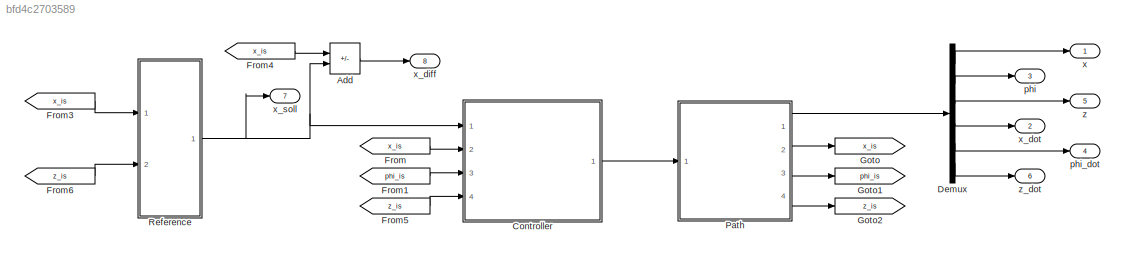
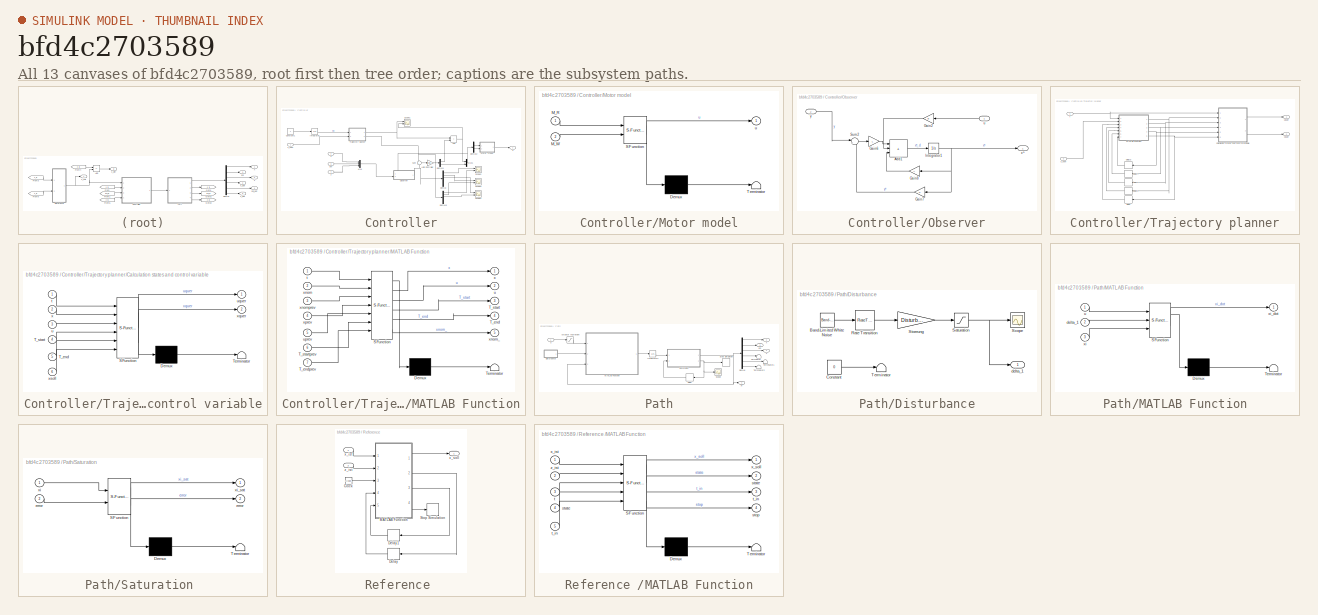
[diagram: thumbnail index - all 13 canvases of the model, root first then tree order]
MODEL slx_bfd4c2703589
KIND model
CONFIG AbsTol = auto
CONFIG EnableMultiTasking = on
CONFIG FixedStep = tStep
CONFIG MaxStep = auto
CONFIG MinStep = auto
CONFIG RelTol = 1e-3
CONFIG SampleTimeConstraint = Unconstrained
CONFIG SolverName = ode23s
CONFIG StartTime = tSim(1)
CONFIG StopTime = tSim(end)
BLOCK [Sum] Add
  IconShape = rectangular
  Inputs = +-
  Ports = [2, 1]
BLOCK [SubSystem] Controller
  Ports = [4, 1]
  RequestExecContextInheritance = off
BLOCK [Sum] Controller/Add
  IconShape = rectangular
  Ports = [2, 1]
BLOCK [Constant] Controller/Constant1
BLOCK [Demux] Controller/Demux
  Outputs = 6
  Ports = [1, 6]
BLOCK [Demux] Controller/Demux1
  Outputs = 2
  Ports = [1, 2]
BLOCK [Demux] Controller/Demux2
  Outputs = 2
  Ports = [1, 2]
BLOCK [Demux] Controller/Demux3
  Outputs = 6
  Ports = [1, 6]
BLOCK [Integrator] Controller/Integrator
  Ports = [1, 1]
BLOCK [Gain] Controller/LQR Controller
  Gain = -ricatti_controller
  Multiplication = Matrix(K*u)
BLOCK [SubSystem] Controller/Motor model
  ErrorFcn = Stateflow.Translate.translate
  PermitHierarchicalResolution = ExplicitOnly
  Ports = [2, 1]
  RequestExecContextInheritance = off
  SFBlockType = MATLAB Function
  TreatAsAtomicUnit = on
BLOCK [Demux] Controller/Motor model/ Demux 
  Outputs = 1
  Ports = [1, 1]
BLOCK [S-Function] Controller/Motor model/ SFunction 
  EnableBusSupport = on
  FunctionName = sf_sfun
  PortCounts = [2 2]
  Ports = [2, 2]
  SFcnIsStateOwnerBlock = off
  SFunctionDeploymentMode = off
  Tag = Stateflow S-Function 4
BLOCK [Terminator] Controller/Motor model/ Terminator 
BLOCK [Inport] Controller/Motor model/M_R
BLOCK [Inport] Controller/Motor model/M_W
  Port = 2
BLOCK [Outport] Controller/Motor model/u
BLOCK [Mux] Controller/Mux
  DisplayOption = bar
  Inputs = 3
  Ports = [3, 1]
BLOCK [Mux] Controller/Mux1
  DisplayOption = bar
  Inputs = 2
  Ports = [2, 1]
BLOCK [SubSystem] Controller/Observer
  NameLocation = top
  PortSchema = {"entries":[{"content":{"sides":[{"content":{"connectorIds":[]},"type":"ConnectorPlacement.EquallySpacedRectSide","uuid":"22a8423b-4933-4d51-83bb-0edf08131761"},{"content":{"connectorIds":["In2"],"side":"RIGHT"},"type":"ConnectorPlacement.EquallySpacedRectSide","uuid":"5b9d6d1b-98ab-4219-9af7-7fee9c92a51b"},{"content":{"connectorIds":[],"side":"TOP"},"type":"ConnectorPlacement.EquallySpacedRectSid...<+534ch>
  Ports = [2, 1]
  RequestExecContextInheritance = off
BLOCK [Sum] Controller/Observer/Add1
  IconShape = rectangular
  Inputs = +++
  Ports = [3, 1]
BLOCK [Gain] Controller/Observer/Gain2
  Gain = B
  Multiplication = Matrix(K*u)
  NameLocation = top
BLOCK [Gain] Controller/Observer/Gain6
  Gain = L
  Multiplication = Matrix(K*u)
BLOCK [Gain] Controller/Observer/Gain7
  Gain = C
  Multiplication = Matrix(K*u)
  NameLocation = top
BLOCK [Gain] Controller/Observer/Gain8
  Gain = A
  Multiplication = Matrix(K*u)
  NameLocation = top
BLOCK [Integrator] Controller/Observer/Integrator1
  InitialCondition = IC
  Ports = [1, 1]
BLOCK [Sum] Controller/Observer/Sum2
  Inputs = |+-
  Ports = [2, 1]
BLOCK [Inport] Controller/Observer/u
  NameLocation = top
BLOCK [Outport] Controller/Observer/x^
BLOCK [Inport] Controller/Observer/y
  Port = 2
BLOCK [Scope] Controller/Scope1
  Floating = off
  NumInputPorts = 2
  Ports = [2]
  ScopeSpecificationString = Simulink.scopes.TimeScopeBlockCfg('CurrentConfiguration', extmgr.ConfigurationSet(extmgr.Configuration('Core','General UI',true),extmgr.Configuration('Core','Source UI',true),extmgr.Configuration('Sources','WiredSimulink',true,'DataLoggingVariableName','ScopeData2'),extmgr.Configuration('Visuals','Time Domain',true,'SerializedDisplays',{struct('MinYLimReal','-0.31783','MaxYLimReal','0.17936','YLab...<+1438ch>
BLOCK [Scope] Controller/Scope2
  Floating = off
  NumInputPorts = 2
  Ports = [2]
  ScopeSpecificationString = Simulink.scopes.TimeScopeBlockCfg('CurrentConfiguration', extmgr.ConfigurationSet(extmgr.Configuration('Core','General UI',true),extmgr.Configuration('Core','Source UI',true),extmgr.Configuration('Sources','WiredSimulink',true,'DataLoggingVariableName','ScopeData2'),extmgr.Configuration('Visuals','Time Domain',true,'SerializedDisplays',{struct('MinYLimReal','-2.75206','MaxYLimReal','0.58674','YLab...<+1421ch>
BLOCK [Scope] Controller/Scope3
  Floating = off
  NumInputPorts = 2
  Ports = [2]
  ScopeSpecificationString = Simulink.scopes.TimeScopeBlockCfg('CurrentConfiguration', extmgr.ConfigurationSet(extmgr.Configuration('Core','General UI',true),extmgr.Configuration('Core','Source UI',true),extmgr.Configuration('Sources','WiredSimulink',true,'DataLoggingVariableName','ScopeData3'),extmgr.Configuration('Visuals','Time Domain',true,'SerializedDisplays',{struct('MinYLimReal','-0.91742','MaxYLimReal','0.94394','YLab...<+1421ch>
BLOCK [Scope] Controller/Scope4
  Floating = off
  NumInputPorts = 2
  Ports = [2]
  ScopeSpecificationString = Simulink.scopes.TimeScopeBlockCfg('CurrentConfiguration', extmgr.ConfigurationSet(extmgr.Configuration('Core','General UI',true),extmgr.Configuration('Core','Source UI',true),extmgr.Configuration('Sources','WiredSimulink',true,'DataLoggingVariableName','ScopeData4'),extmgr.Configuration('Visuals','Time Domain',true,'SerializedDisplays',{struct('MinYLimReal','-0.0536','MaxYLimReal','0.06436','YLabe...<+1448ch>
BLOCK [Sum] Controller/Sum
  Inputs = -+|
  Ports = [2, 1]
BLOCK [SubSystem] Controller/Trajectory planner
  Ports = [2, 2]
  RequestExecContextInheritance = off
BLOCK [SubSystem] Controller/Trajectory planner/Calculation states and control variable
  ErrorFcn = Stateflow.Translate.translate
  PermitHierarchicalResolution = ExplicitOnly
  Ports = [6, 2]
  RequestExecContextInheritance = off
  SFBlockType = MATLAB Function
  TreatAsAtomicUnit = on
BLOCK [Demux] Controller/Trajectory planner/Calculation states and control variable/ Demux 
  Outputs = 1
  Ports = [1, 1]
BLOCK [S-Function] Controller/Trajectory planner/Calculation states and control variable/ SFunction 
  EnableBusSupport = on
  FunctionName = sf_sfun
  PortCounts = [6 3]
  Ports = [6, 3]
  SFcnIsStateOwnerBlock = off
  SFunctionDeploymentMode = off
  Tag = Stateflow S-Function 5
BLOCK [Terminator] Controller/Trajectory planner/Calculation states and control variable/ Terminator 
BLOCK [Inport] Controller/Trajectory planner/Calculation states and control variable/T_end
  Port = 5
BLOCK [Inport] Controller/Trajectory planner/Calculation states and control variable/T_start
  Port = 4
BLOCK [Inport] Controller/Trajectory planner/Calculation states and control variable/t
BLOCK [Inport] Controller/Trajectory planner/Calculation states and control variable/u
  Port = 3
BLOCK [Outport] Controller/Trajectory planner/Calculation states and control variable/uquer
BLOCK [Inport] Controller/Trajectory planner/Calculation states and control variable/x
  Port = 2
BLOCK [Outport] Controller/Trajectory planner/Calculation states and control variable/xquer
  Port = 2
BLOCK [Inport] Controller/Trajectory planner/Calculation states and control variable/xsoll
  Port = 6
BLOCK [Delay] Controller/Trajectory planner/Delay
  DelayLength = 1
  InitialCondition = xStart
  InputPortMap = u0
  NameLocation = top
  Ports = [1, 1]
BLOCK [Delay] Controller/Trajectory planner/Delay1
  DelayLength = 1
  InputPortMap = u0
  NameLocation = top
  Ports = [1, 1]
BLOCK [Delay] Controller/Trajectory planner/Delay2
  DelayLength = 1
  InputPortMap = u0
  NameLocation = top
  Ports = [1, 1]
BLOCK [Delay] Controller/Trajectory planner/Delay3
  DelayLength = 1
  InputPortMap = u0
  NameLocation = top
  Ports = [1, 1]
BLOCK [Delay] Controller/Trajectory planner/Delay4
  DelayLength = 1
  InputPortMap = u0
  NameLocation = top
  Ports = [1, 1]
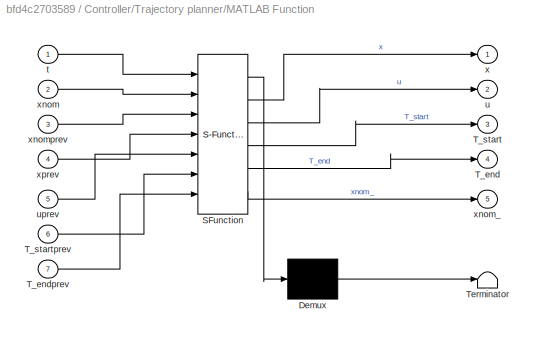
BLOCK [SubSystem] Controller/Trajectory planner/MATLAB Function
  ErrorFcn = Stateflow.Translate.translate
  PermitHierarchicalResolution = ExplicitOnly
  Ports = [7, 5]
  RequestExecContextInheritance = off
  SFBlockType = MATLAB Function
  TreatAsAtomicUnit = on
BLOCK [Demux] Controller/Trajectory planner/MATLAB Function/ Demux 
  Outputs = 1
  Ports = [1, 1]
BLOCK [S-Function] Controller/Trajectory planner/MATLAB Function/ SFunction 
  EnableBusSupport = on
  FunctionName = sf_sfun
  PortCounts = [7 6]
  Ports = [7, 6]
  SFcnIsStateOwnerBlock = off
  SFunctionDeploymentMode = off
  Tag = Stateflow S-Function 6
BLOCK [Terminator] Controller/Trajectory planner/MATLAB Function/ Terminator 
BLOCK [Outport] Controller/Trajectory planner/MATLAB Function/T_end
  Port = 4
BLOCK [Inport] Controller/Trajectory planner/MATLAB Function/T_endprev
  Port = 7
BLOCK [Outport] Controller/Trajectory planner/MATLAB Function/T_start
  Port = 3
BLOCK [Inport] Controller/Trajectory planner/MATLAB Function/T_startprev
  Port = 6
BLOCK [Inport] Controller/Trajectory planner/MATLAB Function/t
BLOCK [Outport] Controller/Trajectory planner/MATLAB Function/u
  Port = 2
BLOCK [Inport] Controller/Trajectory planner/MATLAB Function/uprev
  Port = 5
BLOCK [Outport] Controller/Trajectory planner/MATLAB Function/x
BLOCK [Inport] Controller/Trajectory planner/MATLAB Function/xnom
  Port = 2
BLOCK [Outport] Controller/Trajectory planner/MATLAB Function/xnom_
  Port = 5
BLOCK [Inport] Controller/Trajectory planner/MATLAB Function/xnomprev
  Port = 3
BLOCK [Inport] Controller/Trajectory planner/MATLAB Function/xprev
  Port = 4
BLOCK [Inport] Controller/Trajectory planner/t
BLOCK [Outport] Controller/Trajectory planner/uquer
BLOCK [Inport] Controller/Trajectory planner/x_nom
  Port = 2
BLOCK [Outport] Controller/Trajectory planner/xquer
  Port = 2
BLOCK [Inport] Controller/phi
  Port = 3
BLOCK [Outport] Controller/u
  VectorParamsAs1DForOutWhenUnconnected = off
BLOCK [Inport] Controller/x
  Port = 2
BLOCK [Inport] Controller/x_nom 
BLOCK [Inport] Controller/z
  Port = 4
BLOCK [Demux] Demux
  Outputs = 6
  Ports = [1, 6]
BLOCK [From] From
  GotoTag = x_is
BLOCK [From] From1
  GotoTag = phi_is
BLOCK [From] From3
  GotoTag = x_is
BLOCK [From] From4
  GotoTag = x_is
BLOCK [From] From5
  GotoTag = z_is
BLOCK [From] From6
  GotoTag = z_is
BLOCK [Goto] Goto
  GotoTag = x_is
BLOCK [Goto] Goto1
  GotoTag = phi_is
BLOCK [Goto] Goto2
  GotoTag = z_is
BLOCK [SubSystem] Path
  MaskHideContents = on
  Ports = [1, 4]
  RequestExecContextInheritance = off
BLOCK [Saturate] Path/Actuator restriction
  LowerLimit = -[u_max;u_max]
  UpperLimit = [u_max;u_max]
BLOCK [Delay] Path/Delay
  DelayLength = 1
  InitialCondition = 0
  InputPortMap = u0
  NameLocation = top
  Ports = [1, 1]
BLOCK [Demux] Path/Demux
  Outputs = 6
  Ports = [1, 6]
BLOCK [SubSystem] Path/Disturbance
  Ports = [0, 1]
  RequestExecContextInheritance = off
BLOCK [Reference] Path/Disturbance/Band-Limited White Noise  REF=simulink/Sources/Band-Limited
White Noise
  Ports = [0, 1]
  SourceBlock = simulink/Sources/Band-Limited\nWhite Noise
  SourceProductBaseCode = SL
  SourceType = Band-Limited White Noise.
BLOCK [Constant] Path/Disturbance/Constant
  Value = 0
BLOCK [RateTransition] Path/Disturbance/Rate Transition
BLOCK [Saturate] Path/Disturbance/Saturation
  LowerLimit = -3
  UpperLimit = 3
BLOCK [Scope] Path/Disturbance/Scope
  Floating = off
  NumInputPorts = 1
  Ports = [1]
  ScopeSpecificationString = Simulink.scopes.TimeScopeBlockCfg('CurrentConfiguration', extmgr.ConfigurationSet(extmgr.Configuration('Core','General UI',true),extmgr.Configuration('Core','Source UI',true),extmgr.Configuration('Sources','WiredSimulink',true,'DataLoggingVariableName','ScopeData1'),extmgr.Configuration('Visuals','Time Domain',true,'SerializedDisplays',{struct('MinYLimReal','-0.24279','MaxYLimReal','0.25871','YLab...<+1394ch>
BLOCK [Gain] Path/Disturbance/Stoerung
  Gain = Disturbance
BLOCK [Terminator] Path/Disturbance/Terminator
BLOCK [Outport] Path/Disturbance/delta_1 
  VectorParamsAs1DForOutWhenUnconnected = off
BLOCK [Integrator] Path/Integrator2
  InitialCondition = IC
  Ports = [1, 1]
BLOCK [SubSystem] Path/MATLAB Function
  ErrorFcn = Stateflow.Translate.translate
  PermitHierarchicalResolution = ExplicitOnly
  Ports = [3, 1]
  RequestExecContextInheritance = off
  SFBlockType = MATLAB Function
  TreatAsAtomicUnit = on
BLOCK [Demux] Path/MATLAB Function/ Demux 
  Outputs = 1
  Ports = [1, 1]
BLOCK [S-Function] Path/MATLAB Function/ SFunction 
  EnableBusSupport = on
  FunctionName = sf_sfun
  Parameters = P_max,g,k_r,l_W,m_B,m_R,m_W,r_R,u_max
  PortCounts = [3 2]
  Ports = [3, 2]
  SFcnIsStateOwnerBlock = off
  SFunctionDeploymentMode = off
  Tag = Stateflow S-Function 1
BLOCK [Terminator] Path/MATLAB Function/ Terminator 
BLOCK [Inport] Path/MATLAB Function/delta_1
  Port = 2
BLOCK [Inport] Path/MATLAB Function/u
BLOCK [Inport] Path/MATLAB Function/xi
  Port = 3
BLOCK [Outport] Path/MATLAB Function/xi_dot
  VectorParamsAs1DForOutWhenUnconnected = off
BLOCK [SubSystem] Path/Saturation 
  ErrorFcn = Stateflow.Translate.translate
  PermitHierarchicalResolution = ExplicitOnly
  Ports = [2, 2]
  RequestExecContextInheritance = off
  SFBlockType = MATLAB Function
  TreatAsAtomicUnit = on
BLOCK [Demux] Path/Saturation / Demux 
  Outputs = 1
  Ports = [1, 1]
BLOCK [S-Function] Path/Saturation / SFunction 
  EnableBusSupport = on
  FunctionName = sf_sfun
  Parameters = l_S,l_W,phi_max
  PortCounts = [2 3]
  Ports = [2, 3]
  SFcnIsStateOwnerBlock = off
  SFunctionDeploymentMode = off
  Tag = Stateflow S-Function 3
BLOCK [Terminator] Path/Saturation / Terminator 
BLOCK [Outport] Path/Saturation /error
  Port = 2
  VectorParamsAs1DForOutWhenUnconnected = off
BLOCK [Inport] Path/Saturation /error 
  Port = 2
BLOCK [Inport] Path/Saturation /xi
BLOCK [Outport] Path/Saturation /xi_sat
  VectorParamsAs1DForOutWhenUnconnected = off
BLOCK [Scope] Path/Scope
  Floating = off
  NumInputPorts = 1
  Ports = [1]
  ScopeSpecificationString = Simulink.scopes.TimeScopeBlockCfg('CurrentConfiguration', extmgr.ConfigurationSet(extmgr.Configuration('Core','General UI',true),extmgr.Configuration('Core','Source UI',true),extmgr.Configuration('Sources','WiredSimulink',true,'DataLoggingVariableName','constraint_violation','DataLogging',true,'DataLoggingLimitDataPoints',true,'DataLoggingMaxPoints','1','DataLoggingSaveFormat','Array'),extmgr.Conf...<+1556ch>
BLOCK [Stop] Path/Stop Simulation
BLOCK [Terminator] Path/Terminator
BLOCK [Terminator] Path/Terminator1
BLOCK [Terminator] Path/Terminator2
BLOCK [Outport] Path/phi
  Port = 3
  VectorParamsAs1DForOutWhenUnconnected = off
BLOCK [Inport] Path/u 
BLOCK [Outport] Path/x
  Port = 2
  VectorParamsAs1DForOutWhenUnconnected = off
BLOCK [Outport] Path/xi
  VectorParamsAs1DForOutWhenUnconnected = off
BLOCK [Outport] Path/z
  Port = 4
  VectorParamsAs1DForOutWhenUnconnected = off
BLOCK [SubSystem] Reference 
  Ports = [2, 1]
  RequestExecContextInheritance = off
BLOCK [Clock] Reference /Clock
BLOCK [Delay] Reference /Delay
  DelayLength = 1
  InitialCondition = 1
  InputPortMap = u0
  NameLocation = top
  Ports = [1, 1]
BLOCK [Delay] Reference /Delay1
  DelayLength = 1
  InputPortMap = u0
  NameLocation = top
  Ports = [1, 1]
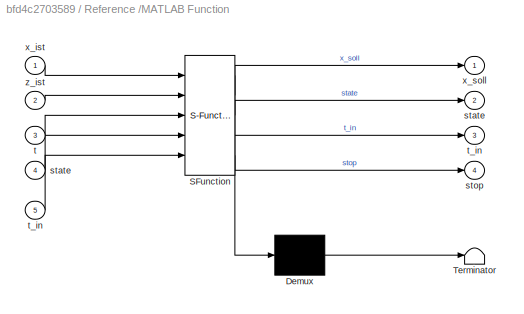
BLOCK [SubSystem] Reference /MATLAB Function
  ErrorFcn = Stateflow.Translate.translate
  PermitHierarchicalResolution = ExplicitOnly
  Ports = [5, 4]
  RequestExecContextInheritance = off
  SFBlockType = MATLAB Function
  TreatAsAtomicUnit = on
BLOCK [Demux] Reference /MATLAB Function/ Demux 
  Outputs = 1
  Ports = [1, 1]
BLOCK [S-Function] Reference /MATLAB Function/ SFunction 
  EnableBusSupport = on
  FunctionName = sf_sfun
  PortCounts = [5 5]
  Ports = [5, 5]
  SFcnIsStateOwnerBlock = off
  SFunctionDeploymentMode = off
  Tag = Stateflow S-Function 2
BLOCK [Terminator] Reference /MATLAB Function/ Terminator 
BLOCK [Outport] Reference /MATLAB Function/state
  Port = 2
  VectorParamsAs1DForOutWhenUnconnected = off
BLOCK [Inport] Reference /MATLAB Function/state 
  Port = 4
BLOCK [Outport] Reference /MATLAB Function/stop
  Port = 4
  VectorParamsAs1DForOutWhenUnconnected = off
BLOCK [Inport] Reference /MATLAB Function/t
  Port = 3
BLOCK [Outport] Reference /MATLAB Function/t_in
  Port = 3
  VectorParamsAs1DForOutWhenUnconnected = off
BLOCK [Inport] Reference /MATLAB Function/t_in 
  Port = 5
BLOCK [Inport] Reference /MATLAB Function/x_ist
BLOCK [Outport] Reference /MATLAB Function/x_soll
  VectorParamsAs1DForOutWhenUnconnected = off
BLOCK [Inport] Reference /MATLAB Function/z_ist
  Port = 2
BLOCK [Stop] Reference /Stop Simulation
BLOCK [Inport] Reference /x_ist
BLOCK [Outport] Reference /x_soll 
  VectorParamsAs1DForOutWhenUnconnected = off
BLOCK [Inport] Reference /z_ist
  Port = 2
BLOCK [Outport] phi
  Port = 3
  VectorParamsAs1DForOutWhenUnconnected = off
BLOCK [Outport] phi_dot
  Port = 4
  VectorParamsAs1DForOutWhenUnconnected = off
BLOCK [Outport] x
  VectorParamsAs1DForOutWhenUnconnected = off
BLOCK [Outport] x_diff
  Port = 8
  VectorParamsAs1DForOutWhenUnconnected = off
BLOCK [Outport] x_dot
  Port = 2
  VectorParamsAs1DForOutWhenUnconnected = off
BLOCK [Outport] x_soll
  Port = 7
  VectorParamsAs1DForOutWhenUnconnected = off
BLOCK [Outport] z
  Port = 5
  VectorParamsAs1DForOutWhenUnconnected = off
BLOCK [Outport] z_dot
  Port = 6
  VectorParamsAs1DForOutWhenUnconnected = off
LINE Add:1 -> x_diff:1
NET Controller/Add:1 -> Controller/Mux1:1, Controller/Scope1:2
LINE Controller/Constant1:1 -> Controller/Integrator:1
LINE Controller/Demux1:1 -> Controller/Add:2
LINE Controller/Demux1:2 -> Controller/Mux1:2
LINE Controller/Demux2:1 -> Controller/Motor model:1
LINE Controller/Demux2:2 -> Controller/Motor model:2
LINE Controller/Demux3:1 -> Controller/Scope2:2
LINE Controller/Demux3:2 -> Controller/Scope3:2
LINE Controller/Demux3:3 -> Controller/Scope4:2
LINE Controller/Demux:1 -> Controller/Scope2:1
LINE Controller/Demux:2 -> Controller/Scope3:1
LINE Controller/Demux:3 -> Controller/Scope4:1
LINE Controller/Integrator:1 -> Controller/Trajectory planner:1
LINE Controller/LQR Controller:1 -> Controller/Demux1:1
LINE Controller/Motor model:1 -> Controller/u:1
NET Controller/Mux1:1 -> Controller/Demux2:1, Controller/Observer:1
LINE Controller/Mux:1 -> Controller/Observer:2
LINE Controller/Observer/Add1:1 -> Controller/Observer/Integrator1:1
LINE Controller/Observer/Gain2:1 -> Controller/Observer/Add1:2
LINE Controller/Observer/Gain6:1 -> Controller/Observer/Add1:1
LINE Controller/Observer/Gain7:1 -> Controller/Observer/Sum2:2
LINE Controller/Observer/Gain8:1 -> Controller/Observer/Add1:3
NET Controller/Observer/Integrator1:1 -> Controller/Observer/Gain7:1, Controller/Observer/Gain8:1, Controller/Observer/x^:1
LINE Controller/Observer/Sum2:1 -> Controller/Observer/Gain6:1
LINE Controller/Observer/u:1 -> Controller/Observer/Gain2:1
LINE Controller/Observer/y:1 -> Controller/Observer/Sum2:1
NET Controller/Observer:1 -> Controller/Demux:1, Controller/Sum:2
LINE Controller/Sum:1 -> Controller/LQR Controller:1
LINE Controller/Trajectory planner/Calculation states and control variable:1 -> Controller/Trajectory planner/uquer:1
LINE Controller/Trajectory planner/Calculation states and control variable:2 -> Controller/Trajectory planner/xquer:1
LINE Controller/Trajectory planner/Delay1:1 -> Controller/Trajectory planner/MATLAB Function:4
LINE Controller/Trajectory planner/Delay2:1 -> Controller/Trajectory planner/MATLAB Function:5
LINE Controller/Trajectory planner/Delay3:1 -> Controller/Trajectory planner/MATLAB Function:7
LINE Controller/Trajectory planner/Delay4:1 -> Controller/Trajectory planner/MATLAB Function:6
LINE Controller/Trajectory planner/Delay:1 -> Controller/Trajectory planner/MATLAB Function:3
NET Controller/Trajectory planner/MATLAB Function:1 -> Controller/Trajectory planner/Calculation states and control variable:2, Controller/Trajectory planner/Delay1:1
NET Controller/Trajectory planner/MATLAB Function:2 -> Controller/Trajectory planner/Calculation states and control variable:3, Controller/Trajectory planner/Delay2:1
NET Controller/Trajectory planner/MATLAB Function:3 -> Controller/Trajectory planner/Calculation states and control variable:4, Controller/Trajectory planner/Delay4:1
NET Controller/Trajectory planner/MATLAB Function:4 -> Controller/Trajectory planner/Calculation states and control variable:5, Controller/Trajectory planner/Delay3:1
NET Controller/Trajectory planner/MATLAB Function:5 -> Controller/Trajectory planner/Calculation states and control variable:6, Controller/Trajectory planner/Delay:1
NET Controller/Trajectory planner/t:1 -> Controller/Trajectory planner/Calculation states and control variable:1, Controller/Trajectory planner/MATLAB Function:1
LINE Controller/Trajectory planner/x_nom:1 -> Controller/Trajectory planner/MATLAB Function:2
NET Controller/Trajectory planner:1 -> Controller/Add:1, Controller/Scope1:1
NET Controller/Trajectory planner:2 -> Controller/Demux3:1, Controller/Sum:1
LINE Controller/phi:1 -> Controller/Mux:2
LINE Controller/x:1 -> Controller/Mux:1
LINE Controller/x_nom :1 -> Controller/Trajectory planner:2
LINE Controller/z:1 -> Controller/Mux:3
LINE Controller:1 -> Path:1
LINE Demux:1 -> x:1
LINE Demux:2 -> phi:1
LINE Demux:3 -> z:1
LINE Demux:4 -> x_dot:1
LINE Demux:5 -> phi_dot:1
LINE Demux:6 -> z_dot:1
LINE From1:1 -> Controller:3
LINE From3:1 -> Reference :1
LINE From4:1 -> Add:1
LINE From5:1 -> Controller:4
LINE From6:1 -> Reference :2
LINE From:1 -> Controller:2
LINE Path/Actuator restriction:1 -> Path/MATLAB Function:1
LINE Path/Delay:1 -> Path/Saturation :2
LINE Path/Demux:1 -> Path/x:1
LINE Path/Demux:2 -> Path/phi:1
LINE Path/Demux:3 -> Path/z:1
LINE Path/Demux:4 -> Path/Terminator:1
LINE Path/Demux:5 -> Path/Terminator1:1
LINE Path/Demux:6 -> Path/Terminator2:1
LINE Path/Disturbance/Band-Limited White Noise:1 -> Path/Disturbance/Rate Transition:1
LINE Path/Disturbance/Constant:1 -> Path/Disturbance/Terminator:1
LINE Path/Disturbance/Rate Transition:1 -> Path/Disturbance/Stoerung:1
NET Path/Disturbance/Saturation:1 -> Path/Disturbance/Scope:1, Path/Disturbance/delta_1 :1
LINE Path/Disturbance/Stoerung:1 -> Path/Disturbance/Saturation:1
LINE Path/Disturbance:1 -> Path/MATLAB Function:2
LINE Path/Integrator2:1 -> Path/Saturation :1
LINE Path/MATLAB Function:1 -> Path/Integrator2:1
NET Path/Saturation :1 -> Path/Demux:1, Path/MATLAB Function:3, Path/xi:1
NET Path/Saturation :2 -> Path/Delay:1, Path/Scope:1, Path/Stop Simulation:1
LINE Path/u :1 -> Path/Actuator restriction:1
LINE Path:1 -> Demux:1
LINE Path:2 -> Goto:1
LINE Path:3 -> Goto1:1
LINE Path:4 -> Goto2:1
LINE Reference /Clock:1 -> Reference /MATLAB Function:3
LINE Reference /Delay1:1 -> Reference /MATLAB Function:5
LINE Reference /Delay:1 -> Reference /MATLAB Function:4
LINE Reference /MATLAB Function:1 -> Reference /x_soll :1
LINE Reference /MATLAB Function:2 -> Reference /Delay:1
LINE Reference /MATLAB Function:3 -> Reference /Delay1:1
LINE Reference /MATLAB Function:4 -> Reference /Stop Simulation:1
LINE Reference /x_ist:1 -> Reference /MATLAB Function:1
LINE Reference /z_ist:1 -> Reference /MATLAB Function:2
NET Reference :1 -> Add:2, Controller:1, x_soll:1
note: NET lines group one-source signal fan-out (src -> all destinations, sorted); 1:1 wires keep LINE
CHART Controller/Trajectory planner/Calculation states and control variable states=1 transitions=1
  STATE_LABEL 'eML_blk_kernel()'
  STATE_LABEL 'SCRIPT:\nfunction [uquer, xquer] = fcn(t, x, u, T_start, T_end, xsoll)\n  if t<T_end && size(x,2) == 68 && size(u,2) == 12 \n      xquer = [x(1)*(t-T_start)^13+x(2)*(t-T_start)^12+x(3)*(t-T_start)^11+x(4)*(t-T_start)^10+x(5)*(t-T_start)^9+x(6)*(t-T_start)^8+x(7)*(t-T_start)^7+x(8)*(t-T_start)^6+x(9)*(t-T_start)^5+x(10)*(t-T_start)^4+x(11)*(t-T_start)^3+x(12)*(t-T_start)^2+x(13);...\n      x(14)*(t-T_s...<+1467ch>'
CHART Controller/Trajectory planner/MATLAB Function states=1 transitions=1
  STATE_LABEL 'eML_blk_kernel()'
  STATE_LABEL 'SCRIPT:\nfunction [x, u, T_start, T_end, xnom_] = fcn(t, xnom, xnomprev, xprev, uprev, T_startprev, T_endprev)\n    if xnom ~= xnomprev\n        w0 = xnomprev;\n        wT = xnom;\n        order = [12,11,10,9,8,7,6,5,4,3,2,1];\n        T_end = abs(w0-wT)/0.7;\n        if T_end<1\n            T_end=1;\n        end\n        u1 = [(1011384551389116279375*(w0 - wT))/(36893488147419103232*T_end^7), (109229531550...<+3608ch>'
CHART Path/MATLAB Function states=1 transitions=1
  STATE_LABEL 'eML_blk_kernel()'
  STATE_LABEL 'SCRIPT:\nfunction xi_dot   = pathDynamic(u, delta_1, xi, m_B, m_R, r_R, l_W, m_W, g, k_r, P_max, u_max)\n\n% Robot, beam and ball dynamics\n\n% Motor torque robot\nu_R = u(1);\nP_R = (u_R+delta_1)/u_max*P_max; %Engine power\nM_R_max = sqrt(abs(P_R))/9.434;\n\nM_R = 2*sign2(u_R+delta_1)*M_R_max; % Total torque\n\n% Motor torque beam\nu_W =  u(2);\nP_W = (u_W+delta_1)/u_max*P_max;\nM_W_max = sqrt(abs(P_W))/9.434;\n...<+261ch>'
CHART Reference
/MATLAB Function states=1 transitions=1
  STATE_LABEL 'eML_blk_kernel()'
  STATE_LABEL 'SCRIPT:\nfunction [x_soll,state,t_in,stop] = reference(x_ist,z_ist,t,state,t_in)\nx_bound = 20*10^-3;\nz_bound = 20*10^-3;\nt_bound = 1.5;\nstop = 0;\n\n%y_ref_vec = [0.2,-2,-1,-2.4,0,0.1,0.2,2,0];\ny_ref_vec = [0.2,-0,-0.5,-1.5,-2.4,-1.5,-1,0];\nif(state <= size(y_ref_vec,2))\n    x_soll = y_ref_vec(state);\n    if(abs(x_ist-y_ref_vec(state)) > x_bound)\n        t_in = t;\n    end\n    if(abs(z_ist-0) > z_boun...<+181ch>'
CHART Path/Saturation  states=1 transitions=1
  STATE_LABEL 'eML_blk_kernel()'
  STATE_LABEL 'SCRIPT:\nfunction [xi_sat,error]  = fcn(xi, error, phi_max, l_S, l_W)\n\nxi_sat = xi;\n\n% Saturation in y\nif xi(1) >= l_S/2\n    xi_sat(1) = l_S/2;\n    xi_sat(4) = 0; % Roboter fällt herunter!!!!\n    error = 1;\nend\n\nif xi(1) <= -l_S/2\n    xi_sat(1) = -l_S/2;\n    xi_sat(4) = 0; % Roboter fällt herunter!!!!\n    error = 1;\nend\n\n% Saturation in phi\nif (abs(xi(2)) > phi_max) \n    error = 1; % Ball verliert ...<+321ch>'
CHART Controller/Motor model states=1 transitions=1
  STATE_LABEL 'eML_blk_kernel()'
  STATE_LABEL 'SCRIPT:\nfunction u = fcn(M_R,M_W)\n    invertM_R = 0;\n    invertM_W = 0;\n    if M_R<0\n        invertM_R=1;\n    end\n    if M_W<0\n        invertM_W=1;\n    end\n    u_R_solved = (250001*M_R^2)/400;\n    u_W_solved = (250001*M_W^2)/100;\n    if invertM_R==1\n        u_R_solved=u_R_solved*(-1);\n    end\n    if invertM_W==1\n        u_W_solved=u_W_solved*(-1);\n    end\n\n    u = [u_R_solved; u_W_solved]; \nend\n'
CHART  states=0 transitions=0
CHART  states=0 transitions=0
CHART  states=0 transitions=0
CHART  states=0 transitions=0
CHART  states=0 transitions=0
CHART  states=0 transitions=0
